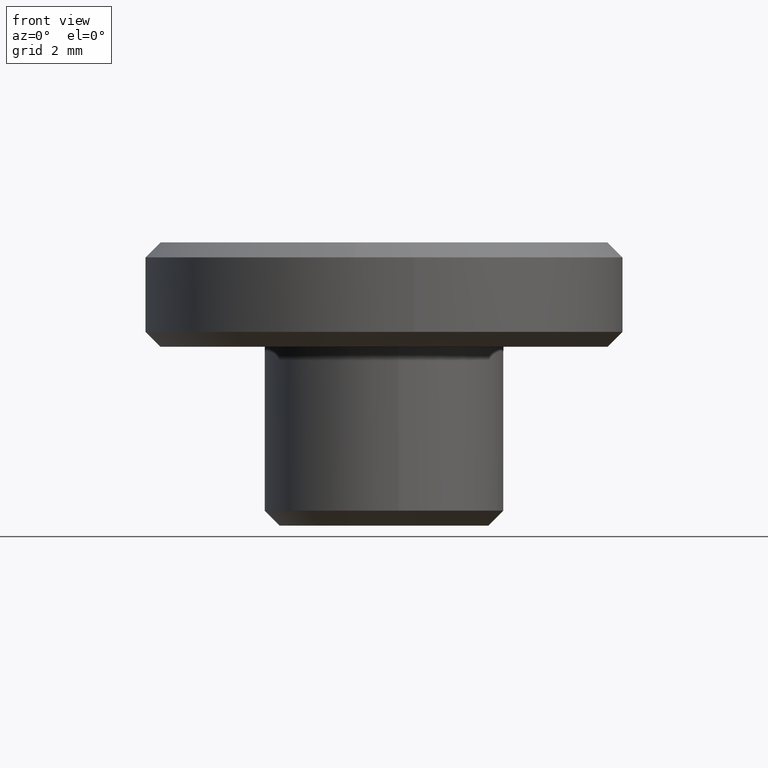
[diagram: clean part render]
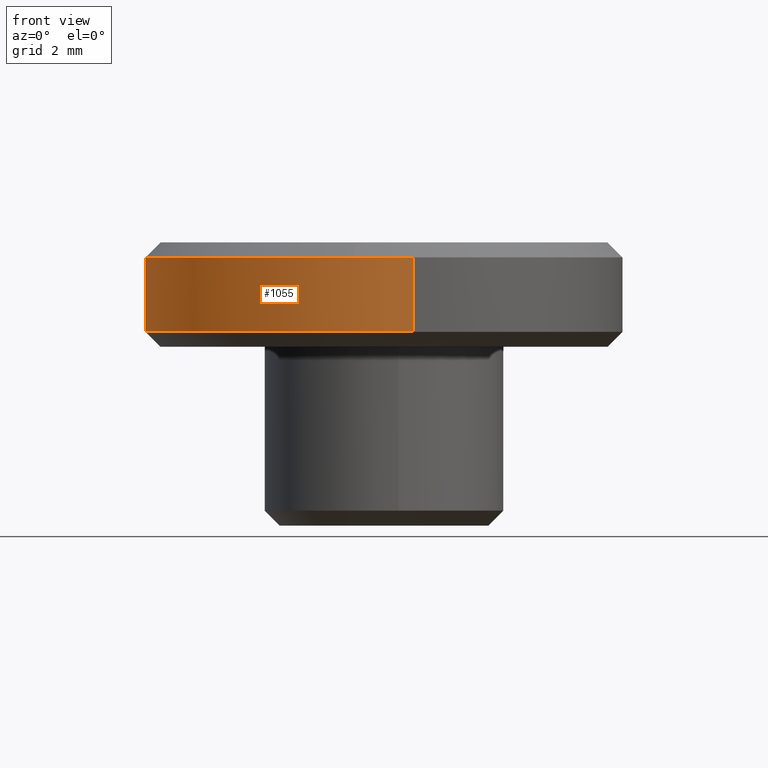
[diagram: same view with one face highlighted and labeled with its STEP entity id]
A machine part, front view. The second image highlights one B-rep face of the part: STEP entity #1055.
In plain terms, the highlighted face is a freeform B-spline surface patch.
Its self-contained STEP definition (entity closure, byte-faithful):
#62=CARTESIAN_POINT('',(-0.993024016639548,-7.938129710604311,8.999999999999886));
#63=VERTEX_POINT('',#62);
#64=CARTESIAN_POINT('',(-8.000000000000011,0.0,9.0));
#65=VERTEX_POINT('',#64);
#66=CARTESIAN_POINT('',(-0.993024016639548,-7.938129710604311,8.999999999999886));
#67=CARTESIAN_POINT('',(-8.000000000000011,-7.061588801200236,9.0));
#68=CARTESIAN_POINT('',(-8.000000000000011,0.0,9.0));
#76=(BOUNDED_CURVE()B_SPLINE_CURVE(2,(#66,#67,#68),.UNSPECIFIED.,.F.,.U.)B_SPLINE_CURVE_WITH_KNOTS((3,3),(0.771473928970739,1.0),.UNSPECIFIED.)CURVE()GEOMETRIC_REPRESENTATION_ITEM()RATIONAL_B_SPLINE_CURVE((0.954005430274645,0.732265053893792,1.0))REPRESENTATION_ITEM(''));
#77=EDGE_CURVE('',#63,#65,#76,.T.);
#125=CARTESIAN_POINT('',(-0.069807241200332,7.999695428517923,9.000000000000023));
#126=VERTEX_POINT('',#125);
#142=CARTESIAN_POINT('',(-8.000000000000011,0.0,9.0));
#143=CARTESIAN_POINT('',(-8.000000000000011,7.930494684113032,9.0));
#144=CARTESIAN_POINT('',(-0.069807241200332,7.999695428517923,9.000000000000023));
#152=(BOUNDED_CURVE()B_SPLINE_CURVE(2,(#142,#143,#144),.UNSPECIFIED.,.F.,.U.)B_SPLINE_CURVE_WITH_KNOTS((3,3),(0.0,0.248460216700562),.UNSPECIFIED.)CURVE()GEOMETRIC_REPRESENTATION_ITEM()RATIONAL_B_SPLINE_CURVE((1.0,0.708910749533938,0.996414285067891))REPRESENTATION_ITEM(''));
#153=EDGE_CURVE('',#65,#126,#152,.T.);
#180=CARTESIAN_POINT('',(0.993019944666486,-7.938130219987430,8.999999999999979));
#181=VERTEX_POINT('',#180);
#182=CARTESIAN_POINT('',(0.993019944666486,-7.938130219987430,8.999999999999979));
#183=CARTESIAN_POINT('',(0.498437360448333,-8.0,9.0));
#184=CARTESIAN_POINT('',(-1.065814E-014,-8.0,9.0));
#185=CARTESIAN_POINT('',(-0.498439420268864,-8.000000000000002,9.000000000000002));
#186=CARTESIAN_POINT('',(-0.993024016639548,-7.938129710604311,8.999999999999886));
#194=(BOUNDED_CURVE()B_SPLINE_CURVE(2,(#182,#183,#184,#185,#186),.UNSPECIFIED.,.F.,.U.)B_SPLINE_CURVE_WITH_KNOTS((3,2,3),(0.728526157538534,0.750000000000000,0.771473928970739),.UNSPECIFIED.)CURVE()GEOMETRIC_REPRESENTATION_ITEM()RATIONAL_B_SPLINE_CURVE((0.954005598155769,0.974841828644673,1.0,0.974841727292755,0.954005430274645))REPRESENTATION_ITEM(''));
#195=EDGE_CURVE('',#181,#63,#194,.T.);
#337=CARTESIAN_POINT('',(0.069812283987217,-7.999695384513414,6.500000000000019));
#338=VERTEX_POINT('',#337);
#344=CARTESIAN_POINT('',(-8.000000000000011,0.0,6.500000000000000));
#345=VERTEX_POINT('',#344);
#346=CARTESIAN_POINT('',(-8.000000000000011,0.0,6.500000000000000));
#347=CARTESIAN_POINT('',(-8.000000000000011,-8.0,6.500000000000001));
#348=CARTESIAN_POINT('',(-1.065814E-014,-8.0,6.500000000000000));
#349=CARTESIAN_POINT('',(0.034906806565840,-8.0,6.500000000000001));
#350=CARTESIAN_POINT('',(0.069812283987217,-7.999695384513414,6.500000000000019));
#358=(BOUNDED_CURVE()B_SPLINE_CURVE(2,(#346,#347,#348,#349,#350),.UNSPECIFIED.,.F.,.U.)B_SPLINE_CURVE_WITH_KNOTS((3,2,3),(0.0,0.250000000000000,0.251539894334998),.UNSPECIFIED.)CURVE()GEOMETRIC_REPRESENTATION_ITEM()RATIONAL_B_SPLINE_CURVE((1.0,0.707106781186548,1.0,0.998195901566360,0.996414028100381))REPRESENTATION_ITEM(''));
#359=EDGE_CURVE('',#345,#338,#358,.T.);
#361=CARTESIAN_POINT('',(-0.069806827217457,7.999695432130153,6.500000000000000));
#362=VERTEX_POINT('',#361);
#363=CARTESIAN_POINT('',(-0.069806827217457,7.999695432130153,6.500000000000000));
#364=CARTESIAN_POINT('',(-8.000000000000011,7.930495094530415,6.500000000000002));
#365=CARTESIAN_POINT('',(-8.000000000000011,0.0,6.500000000000000));
#373=(BOUNDED_CURVE()B_SPLINE_CURVE(2,(#363,#364,#365),.UNSPECIFIED.,.F.,.U.)B_SPLINE_CURVE_WITH_KNOTS((3,3),(0.751539774184077,1.0),.UNSPECIFIED.)CURVE()GEOMETRIC_REPRESENTATION_ITEM()RATIONAL_B_SPLINE_CURVE((0.996414306163410,0.708910738854628,1.0))REPRESENTATION_ITEM(''));
#374=EDGE_CURVE('',#362,#345,#373,.T.);
#444=CARTESIAN_POINT('',(0.993020157126018,-7.938130193409922,6.500000000000000));
#445=VERTEX_POINT('',#444);
#459=CARTESIAN_POINT('',(0.069812283987217,-7.999695384513414,6.500000000000019));
#460=CARTESIAN_POINT('',(0.533199320417539,-7.995651467110463,6.500000000000002));
#461=CARTESIAN_POINT('',(0.993020157126018,-7.938130193409922,6.500000000000001));
#469=(BOUNDED_CURVE()B_SPLINE_CURVE(2,(#459,#460,#461),.UNSPECIFIED.,.F.,.U.)B_SPLINE_CURVE_WITH_KNOTS((3,3),(0.251539894334998,0.271473846975178),.UNSPECIFIED.)CURVE()GEOMETRIC_REPRESENTATION_ITEM()RATIONAL_B_SPLINE_CURVE((0.996414028100382,0.973347652392427,0.954005589396391))REPRESENTATION_ITEM(''));
#470=EDGE_CURVE('',#338,#445,#469,.T.);
#1005=CARTESIAN_POINT('',(0.993020157126018,-7.938130193409922,6.500000000000000));
#1006=CARTESIAN_POINT('',(0.993019944666486,-7.938130219987430,8.999999999999979));
#1007=QUASI_UNIFORM_CURVE('',1,(#1005,#1006),.UNSPECIFIED.,.F.,.U.);
#1008=EDGE_CURVE('',#445,#181,#1007,.T.);
#1013=CARTESIAN_POINT('',(-0.069806827217457,7.999695432130153,6.500000000000000));
#1014=CARTESIAN_POINT('',(-0.069807241200332,7.999695428517923,9.000000000000023));
#1015=QUASI_UNIFORM_CURVE('',1,(#1013,#1014),.UNSPECIFIED.,.F.,.U.);
#1016=EDGE_CURVE('',#362,#126,#1015,.T.);
#1023=CARTESIAN_POINT('',(-0.069812283987002,7.999695384513368,6.437499999999999));
#1024=CARTESIAN_POINT('',(-8.069507668500370,7.929883100526377,6.437499999999999));
#1025=CARTESIAN_POINT('',(-7.999695384513379,-0.069812283986991,6.437499999999999));
#1026=CARTESIAN_POINT('',(-7.929883100526388,-8.069507668500359,6.437499999999999));
#1027=CARTESIAN_POINT('',(0.069812283986980,-7.999695384513368,6.437499999999999));
#1028=CARTESIAN_POINT('',(0.533201271665378,-7.995651450082205,6.437499999999998));
#1029=CARTESIAN_POINT('',(0.993024016638624,-7.938129710604309,6.437499999999999));
#1030=CARTESIAN_POINT('',(-0.069812283987002,7.999695384513368,9.064062500000002));
#1031=CARTESIAN_POINT('',(-8.069507668500370,7.929883100526377,9.064062500000002));
#1032=CARTESIAN_POINT('',(-7.999695384513379,-0.069812283986991,9.064062500000002));
#1033=CARTESIAN_POINT('',(-7.929883100526388,-8.069507668500359,9.064062500000002));
#1034=CARTESIAN_POINT('',(0.069812283986980,-7.999695384513368,9.064062500000002));
#1035=CARTESIAN_POINT('',(0.533201271665378,-7.995651450082205,9.064062500000002));
#1036=CARTESIAN_POINT('',(0.993024016638624,-7.938129710604309,9.064062500000002));
#1044=(BOUNDED_SURFACE()B_SPLINE_SURFACE(2,1,((#1023,#1030),(#1024,#1031),(#1025,#1032),(#1026,#1033),(#1027,#1034),(#1028,#1035),(#1029,#1036)),.UNSPECIFIED.,.F.,.F.,.U.)B_SPLINE_SURFACE_WITH_KNOTS((3,2,2,3),(2,2),(0.0,13.254833995939039,26.509667991878079,27.570054711553201),(0.0,2.626562500000004),.UNSPECIFIED.)GEOMETRIC_REPRESENTATION_ITEM()RATIONAL_B_SPLINE_SURFACE(((1.0,1.0),(0.707106781186548,0.707106781186548),(1.0,1.0),(0.707106781186548,0.707106781186548),(1.0,1.0),(0.976568542494924,0.976568542494924),(0.956886118190660,0.956886118190660)))REPRESENTATION_ITEM('')SURFACE());
#1045=ORIENTED_EDGE('',*,*,#195,.T.);
#1046=ORIENTED_EDGE('',*,*,#77,.T.);
#1047=ORIENTED_EDGE('',*,*,#153,.T.);
#1048=ORIENTED_EDGE('',*,*,#1016,.F.);
#1049=ORIENTED_EDGE('',*,*,#374,.T.);
#1050=ORIENTED_EDGE('',*,*,#359,.T.);
#1051=ORIENTED_EDGE('',*,*,#470,.T.);
#1052=ORIENTED_EDGE('',*,*,#1008,.T.);
#1053=EDGE_LOOP('',(#1045,#1046,#1047,#1048,#1049,#1050,#1051,#1052));
#1054=FACE_OUTER_BOUND('',#1053,.T.);
#1055=ADVANCED_FACE('',(#1054),#1044,.T.);